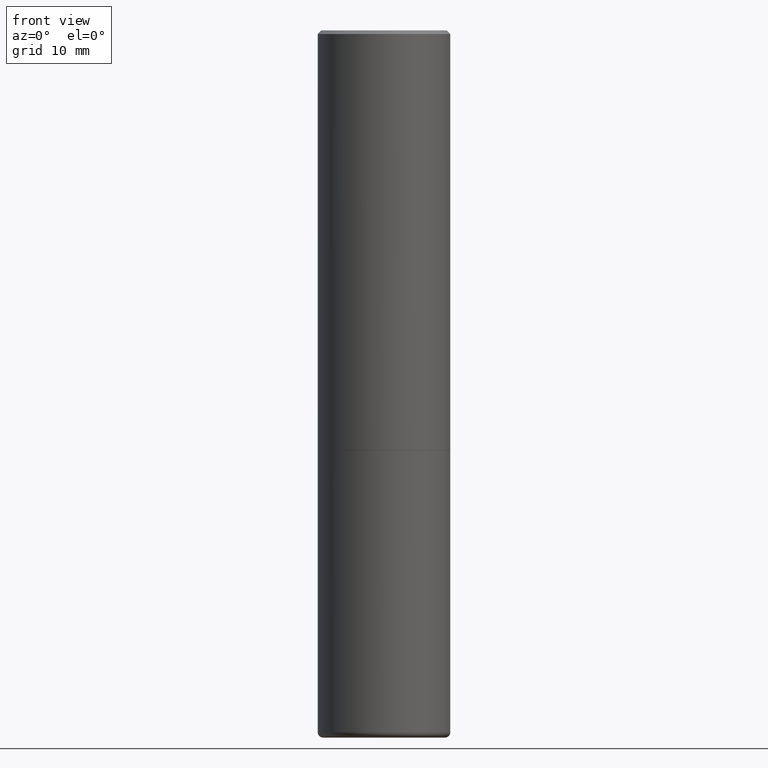
[diagram: clean part render]
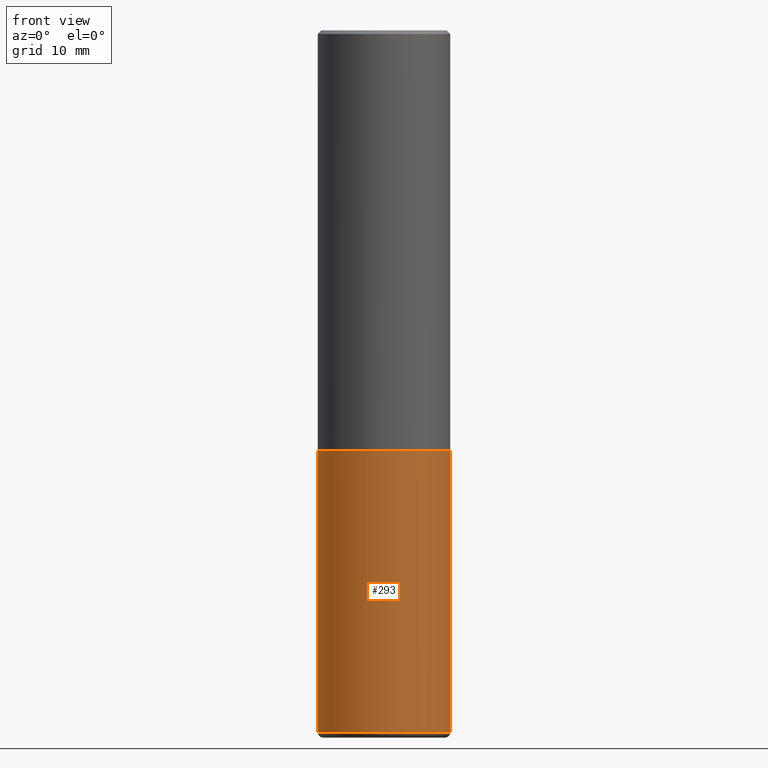
[diagram: same view with one face highlighted and labeled with its STEP entity id]
A machine part, front view. The second image highlights one B-rep face of the part: STEP entity #293.
In plain terms, the highlighted cylindrical surface (partial cylindrical patch) has radius 9.525 mm, axis along (-0, 0, 1).
Its self-contained STEP definition (entity closure, byte-faithful):
#45 = CARTESIAN_POINT ( 'NONE',  ( 9.708513954033757613E-29, -1.386118490355461518E-14, -3.970001142308074993 ) ) ;
#50 = AXIS2_PLACEMENT_3D ( 'NONE', #45, #468, #229 ) ;
#55 = EDGE_CURVE ( 'NONE', #304, #155, #249, .T. ) ;
#61 = CARTESIAN_POINT ( 'NONE',  ( 0.3749999999999993894, -2.618611004132345678E-15, 1.828566290923473120E-29 ) ) ;
#68 = CARTESIAN_POINT ( 'NONE',  ( 0.3749999999999995559, -1.091087918388481698E-14, -2.375000000000000000 ) ) ;
#85 = CIRCLE ( 'NONE', #50, 0.3749999999999993339 ) ;
#100 = VECTOR ( 'NONE', #290, 39.37007874015748143 ) ;
#102 = DIRECTION ( 'NONE',  ( -2.445468806185136597E-29, 3.491481338843145583E-15, 1.000000000000000000 ) ) ;
#104 = EDGE_CURVE ( 'NONE', #386, #155, #395, .T. ) ;
#105 = AXIS2_PLACEMENT_3D ( 'NONE', #362, #399, #273 ) ;
#107 = FACE_OUTER_BOUND ( 'NONE', #429, .T. ) ;
#145 = CARTESIAN_POINT ( 'NONE',  ( 0.3749999999999993339, -1.647979590768696204E-14, -3.970001142308074993 ) ) ;
#155 = VERTEX_POINT ( 'NONE', #68 ) ;
#166 = VECTOR ( 'NONE', #201, 39.37007874015748143 ) ;
#201 = DIRECTION ( 'NONE',  ( -2.445468806185136877E-29, 3.491481338843145188E-15, 1.000000000000000000 ) ) ;
#224 = CARTESIAN_POINT ( 'NONE',  ( -0.3749999999999995559, -8.412191282553170896E-15, -2.375000000000000000 ) ) ;
#225 = VERTEX_POINT ( 'NONE', #284 ) ;
#226 = ORIENTED_EDGE ( 'NONE', *, *, #324, .T. ) ;
#229 = DIRECTION ( 'NONE',  ( 1.000000000000000000, -6.982962677686269866E-15, 0.000000000000000000 ) ) ;
#249 = CIRCLE ( 'NONE', #105, 0.3749999999999995559 ) ;
#265 = EDGE_CURVE ( 'NONE', #225, #304, #405, .T. ) ;
#273 = DIRECTION ( 'NONE',  ( 1.000000000000000000, -6.982962677686265133E-15, 0.000000000000000000 ) ) ;
#284 = CARTESIAN_POINT ( 'NONE',  ( -0.3749999999999993339, -8.412191282553172474E-15, -3.970001142308074993 ) ) ;
#287 = AXIS2_PLACEMENT_3D ( 'NONE', #451, #102, #364 ) ;
#288 = CARTESIAN_POINT ( 'NONE',  ( -0.3749999999999993894, 2.664535259100371358E-15, -1.844600658845586515E-29 ) ) ;
#290 = DIRECTION ( 'NONE',  ( -2.445468806185136877E-29, 3.491481338843145188E-15, 1.000000000000000000 ) ) ;
#293 = ADVANCED_FACE ( 'NONE', ( #107 ), #410, .T. ) ;
#304 = VERTEX_POINT ( 'NONE', #224 ) ;
#324 = EDGE_CURVE ( 'NONE', #225, #386, #85, .T. ) ;
#362 = CARTESIAN_POINT ( 'NONE',  ( 5.807988414689699417E-29, -8.292268179752470118E-15, -2.375000000000000000 ) ) ;
#364 = DIRECTION ( 'NONE',  ( 1.000000000000000000, -6.982962677686266711E-15, 4.876176775795936353E-29 ) ) ;
#386 = VERTEX_POINT ( 'NONE', #145 ) ;
#395 = LINE ( 'NONE', #61, #166 ) ;
#399 = DIRECTION ( 'NONE',  ( -2.445468806185136597E-29, 3.491481338843145583E-15, 1.000000000000000000 ) ) ;
#405 = LINE ( 'NONE', #288, #100 ) ;
#410 = CYLINDRICAL_SURFACE ( 'NONE', #287, 0.3749999999999993894 ) ;
#428 = ORIENTED_EDGE ( 'NONE', *, *, #55, .F. ) ;
#429 = EDGE_LOOP ( 'NONE', ( #481, #226, #473, #428 ) ) ;
#451 = CARTESIAN_POINT ( 'NONE',  ( 0.000000000000000000, 0.000000000000000000, 0.000000000000000000 ) ) ;
#468 = DIRECTION ( 'NONE',  ( -2.445468806185136597E-29, 3.491481338843145583E-15, 1.000000000000000000 ) ) ;
#473 = ORIENTED_EDGE ( 'NONE', *, *, #104, .T. ) ;
#481 = ORIENTED_EDGE ( 'NONE', *, *, #265, .F. ) ;